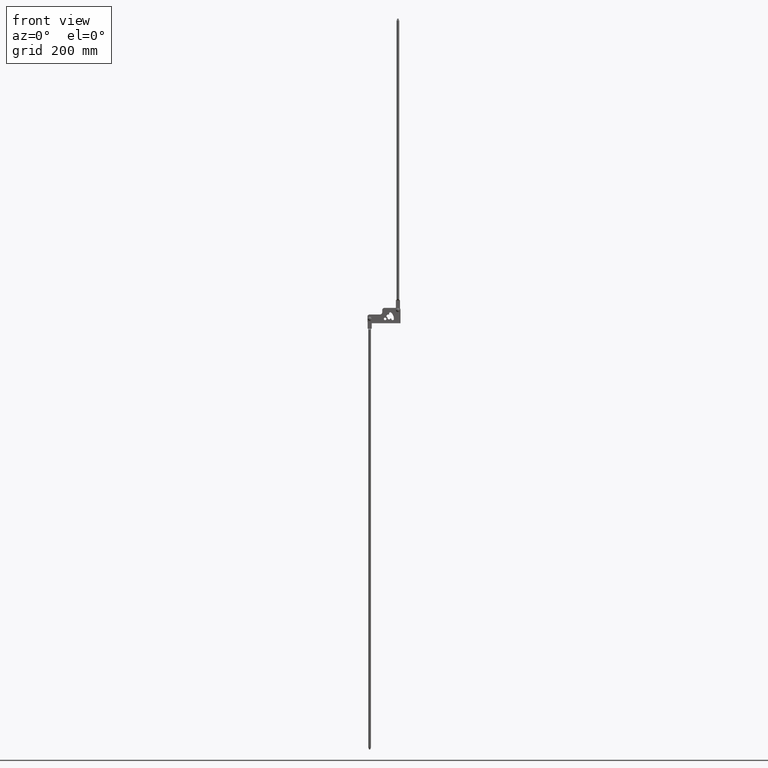
[diagram: clean part render]
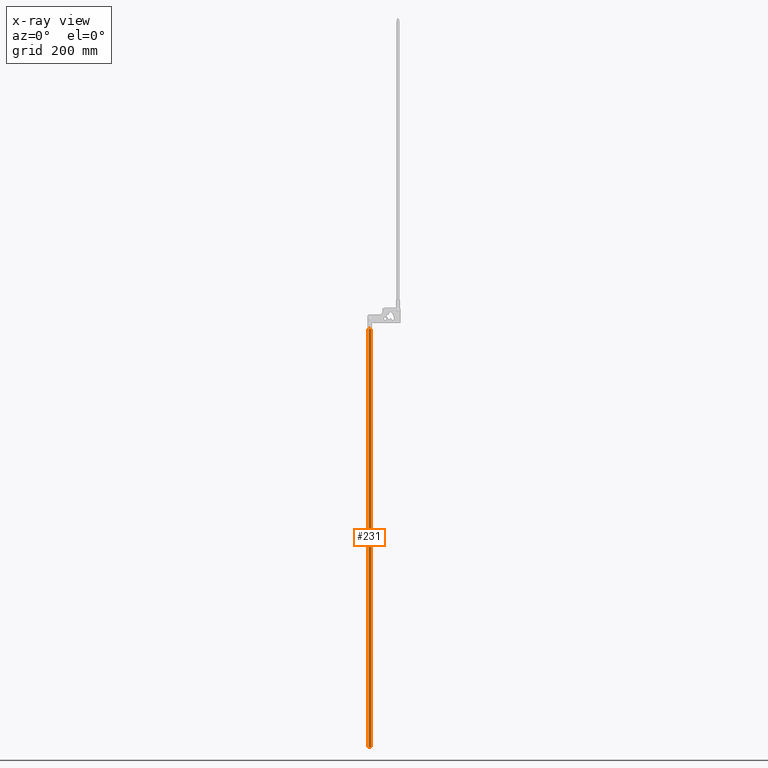
[diagram: x-ray — body ghosted, one internal face saturated and labeled with its STEP entity id]
A machine part, front view, then the same camera in x-ray: the body is ghosted and one INTERNAL B-rep face — a face not visible from any outside direction — is saturated and labeled: STEP entity #231.
In plain terms, the highlighted cylindrical surface (edge-blend (fillet) strip) has radius 3 mm, axis along (-0, -0, -1).
Its self-contained STEP definition (entity closure, byte-faithful):
#231=ADVANCED_FACE('',(#1078),#1077,.T.);
#1077=CYLINDRICAL_SURFACE('',#1872,3.00000000000E+00);
#1078=FACE_OUTER_BOUND('',#1873,.T.);
#1869=CARTESIAN_POINT('',(8.65441052156E-12,0.00000000000E+00,-1.02200000000E+03));
#1870=DIRECTION('',(-0.00000000000E+00,-0.00000000000E+00,-1.00000000000E+00));
#1871=DIRECTION('',(-1.00000000000E+00,-0.00000000000E+00,0.00000000000E+00));
#1872=AXIS2_PLACEMENT_3D('',#1869,#1870,#1871);
#1873=EDGE_LOOP('',(#2365,#2366,#2367,#2368,#2369,#2370,#2371));
#2365=ORIENTED_EDGE('',*,*,#2639,.F.);
#2366=ORIENTED_EDGE('',*,*,#2640,.F.);
#2367=ORIENTED_EDGE('',*,*,#2615,.T.);
#2368=ORIENTED_EDGE('',*,*,#2638,.T.);
#2369=ORIENTED_EDGE('',*,*,#2585,.T.);
#2370=ORIENTED_EDGE('',*,*,#2590,.T.);
#2371=ORIENTED_EDGE('',*,*,#2641,.T.);
#2585=EDGE_CURVE('',#3774,#3775,#3776,.T.);
#2590=EDGE_CURVE('',#3775,#3803,#3810,.T.);
#2615=EDGE_CURVE('',#3978,#3971,#3979,.T.);
#2638=EDGE_CURVE('',#3971,#3774,#4132,.T.);
#2639=EDGE_CURVE('',#4138,#4139,#4140,.T.);
#2640=EDGE_CURVE('',#3978,#4138,#4146,.T.);
#2641=EDGE_CURVE('',#3803,#4139,#4152,.T.);
#3774=VERTEX_POINT('',#4957);
#3775=VERTEX_POINT('',#4958);
#3776=(BOUNDED_CURVE() B_SPLINE_CURVE(3,(#4959,#4960,#4961,#4962,#4963,#4964,#4965,#4966,#4967,#4968,#4969,#4970),.UNSPECIFIED.,.F.,.F.) B_SPLINE_CURVE_WITH_KNOTS((4,2,2,2,2,4),(-3.50102287793E-03,-2.62576715845E-03,-1.75051143896E-03,-8.75255719482E-04,-4.37627859741E-04,-3.83629890289E-18),.UNSPECIFIED.) CURVE() GEOMETRIC_REPRESENTATION_ITEM() RATIONAL_B_SPLINE_CURVE((1.00000000000E+00,1.00000000000E+00,1.00000000000E+00,1.00000000000E+00,1.00000000000E+00,1.00000000000E+00,1.00000000000E+00,1.00000000000E+00,1.00000000000E+00,1.00000000000E+00,1.00000000000E+00,1.00000000000E+00)) REPRESENTATION_ITEM('') );
#3803=VERTEX_POINT('',#4991);
#3810=CIRCLE('',#4999,3.00000000000E+00);
#3971=VERTEX_POINT('',#5101);
#3978=VERTEX_POINT('',#5106);
#3979=CIRCLE('',#5110,3.00000000000E+00);
#4132=(BOUNDED_CURVE() B_SPLINE_CURVE(3,(#5218,#5219,#5220,#5221,#5222,#5223,#5224,#5225,#5226,#5227,#5228,#5229),.UNSPECIFIED.,.F.,.F.) B_SPLINE_CURVE_WITH_KNOTS((4,2,2,2,2,4),(0.00000000000E+00,4.37627859741E-04,8.75255719482E-04,1.75051143896E-03,2.62576715845E-03,3.50102287793E-03),.UNSPECIFIED.) CURVE() GEOMETRIC_REPRESENTATION_ITEM() RATIONAL_B_SPLINE_CURVE((1.00000000000E+00,1.00000000000E+00,1.00000000000E+00,1.00000000000E+00,1.00000000000E+00,1.00000000000E+00,1.00000000000E+00,1.00000000000E+00,1.00000000000E+00,1.00000000000E+00,1.00000000000E+00,1.00000000000E+00)) REPRESENTATION_ITEM('') );
#4138=VERTEX_POINT('',#5230);
#4139=VERTEX_POINT('',#5231);
#4140=CIRCLE('',#5235,3.00000000000E+00);
#4146=(BOUNDED_CURVE() B_SPLINE_CURVE(1,(#5236,#5237),.UNSPECIFIED.,.F.,.F.) B_SPLINE_CURVE_WITH_KNOTS((2,2),(1.23966942083E-02,9.89669421475E-01),.UNSPECIFIED.) CURVE() GEOMETRIC_REPRESENTATION_ITEM() RATIONAL_B_SPLINE_CURVE((1.00000000000E+00,1.00000000000E+00)) REPRESENTATION_ITEM('') );
#4152=(BOUNDED_CURVE() B_SPLINE_CURVE(1,(#5238,#5239),.UNSPECIFIED.,.F.,.F.) B_SPLINE_CURVE_WITH_KNOTS((2,2),(1.23966942149E-02,9.89669421488E-01),.UNSPECIFIED.) CURVE() GEOMETRIC_REPRESENTATION_ITEM() RATIONAL_B_SPLINE_CURVE((7.50000000000E-01,7.50000000000E-01)) REPRESENTATION_ITEM('') );
#4957=CARTESIAN_POINT('',(8.65441052156E-12,3.00000000000E+00,-2.20000000000E+01));
#4958=CARTESIAN_POINT('',(2.40000000001E+00,1.80000000000E+00,-2.40000000000E+01));
#4959=CARTESIAN_POINT('',(8.65441052156E-12,3.00000000000E+00,-2.20000000000E+01));
#4960=CARTESIAN_POINT('',(2.00797636714E-01,3.00000000000E+00,-2.22116590389E+01));
#4961=CARTESIAN_POINT('',(4.03278541759E-01,2.97982522631E+00,-2.24251599748E+01));
#4962=CARTESIAN_POINT('',(8.04724941446E-01,2.89731077557E+00,-2.28382696927E+01));
#4963=CARTESIAN_POINT('',(1.00470637796E+00,2.83540632854E+00,-2.30393748229E+01));
#4964=CARTESIAN_POINT('',(1.40984551826E+00,2.65731058939E+00,-2.34200868778E+01));
#4965=CARTESIAN_POINT('',(1.61368086458E+00,2.54165680557E+00,-2.35992953779E+01));
#4966=CARTESIAN_POINT('',(1.91578437100E+00,2.31209138149E+00,-2.38146573252E+01));
#4967=CARTESIAN_POINT('',(2.01795466269E+00,2.22428925274E+00,-2.38786204373E+01));
#4968=CARTESIAN_POINT('',(2.21635147084E+00,2.02666964704E+00,-2.39714345807E+01));
#4969=CARTESIAN_POINT('',(2.31067194591E+00,1.91910407214E+00,-2.40000000000E+01));
#4970=CARTESIAN_POINT('',(2.40000000001E+00,1.80000000000E+00,-2.40000000000E+01));
#4991=CARTESIAN_POINT('',(3.00000000001E+00,-9.73307097322E-07,-2.40000000000E+01));
#4996=CARTESIAN_POINT('',(8.65441052156E-12,0.00000000000E+00,-2.40000000000E+01));
#4997=DIRECTION('',(-0.00000000000E+00,0.00000000000E+00,-1.00000000000E+00));
#4998=DIRECTION('',(-1.00000000000E+00,-0.00000000000E+00,0.00000000000E+00));
#4999=AXIS2_PLACEMENT_3D('',#4996,#4997,#4998);
#5101=CARTESIAN_POINT('',(-2.39999999999E+00,1.80000000000E+00,-2.40000000000E+01));
#5106=CARTESIAN_POINT('',(-2.99999999999E+00,-1.29682176436E-11,-2.40000000000E+01));
#5107=CARTESIAN_POINT('',(8.65441052156E-12,0.00000000000E+00,-2.40000000000E+01));
#5108=DIRECTION('',(-0.00000000000E+00,0.00000000000E+00,-1.00000000000E+00));
#5109=DIRECTION('',(-8.00000000000E-01,6.00000000000E-01,0.00000000000E+00));
#5110=AXIS2_PLACEMENT_3D('',#5107,#5108,#5109);
#5218=CARTESIAN_POINT('',(-2.39999999999E+00,1.80000000000E+00,-2.40000000000E+01));
#5219=CARTESIAN_POINT('',(-2.31067194589E+00,1.91910407214E+00,-2.40000000000E+01));
#5220=CARTESIAN_POINT('',(-2.21635147083E+00,2.02666964704E+00,-2.39714345807E+01));
#5221=CARTESIAN_POINT('',(-2.01795466268E+00,2.22428925274E+00,-2.38786204373E+01));
#5222=CARTESIAN_POINT('',(-1.91578437098E+00,2.31209138149E+00,-2.38146573252E+01));
#5223=CARTESIAN_POINT('',(-1.61368086456E+00,2.54165680557E+00,-2.35992953779E+01));
#5224=CARTESIAN_POINT('',(-1.40984551824E+00,2.65731058939E+00,-2.34200868778E+01));
#5225=CARTESIAN_POINT('',(-1.00470637794E+00,2.83540632854E+00,-2.30393748229E+01));
#5226=CARTESIAN_POINT('',(-8.04724941429E-01,2.89731077557E+00,-2.28382696927E+01));
#5227=CARTESIAN_POINT('',(-4.03278541742E-01,2.97982522631E+00,-2.24251599748E+01));
#5228=CARTESIAN_POINT('',(-2.00797636697E-01,3.00000000000E+00,-2.22116590389E+01));
#5229=CARTESIAN_POINT('',(8.65441052156E-12,3.00000000000E+00,-2.20000000000E+01));
#5230=CARTESIAN_POINT('',(-2.99999999999E+00,0.00000000000E+00,-9.70000000000E+02));
#5231=CARTESIAN_POINT('',(3.00000000001E+00,-1.48029736617E-16,-9.70000000000E+02));
#5232=CARTESIAN_POINT('',(8.65441052156E-12,0.00000000000E+00,-9.70000000000E+02));
#5233=DIRECTION('',(-0.00000000000E+00,0.00000000000E+00,-1.00000000000E+00));
#5234=DIRECTION('',(-1.00000000000E+00,-1.22460635382E-16,0.00000000000E+00));
#5235=AXIS2_PLACEMENT_3D('',#5232,#5233,#5234);
#5236=CARTESIAN_POINT('',(-2.99999999999E+00,0.00000000000E+00,-2.39999999936E+01));
#5237=CARTESIAN_POINT('',(-2.99999999999E+00,0.00000000000E+00,-9.69999999988E+02));
#5238=CARTESIAN_POINT('',(3.00000000001E+00,-1.48029736617E-16,-2.40000000000E+01));
#5239=CARTESIAN_POINT('',(3.00000000001E+00,-1.48029736617E-16,-9.70000000000E+02));